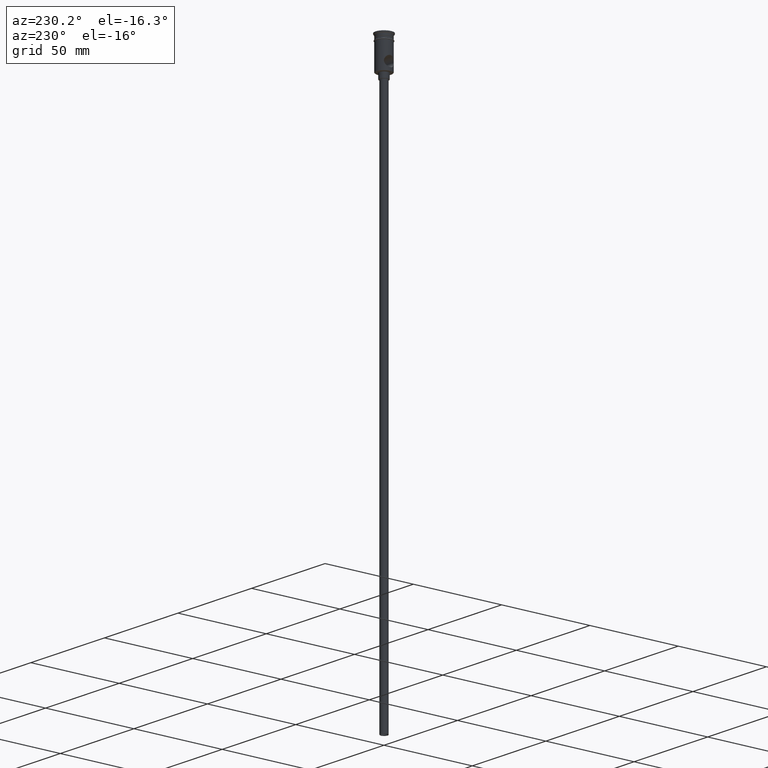
[diagram: clean part render]
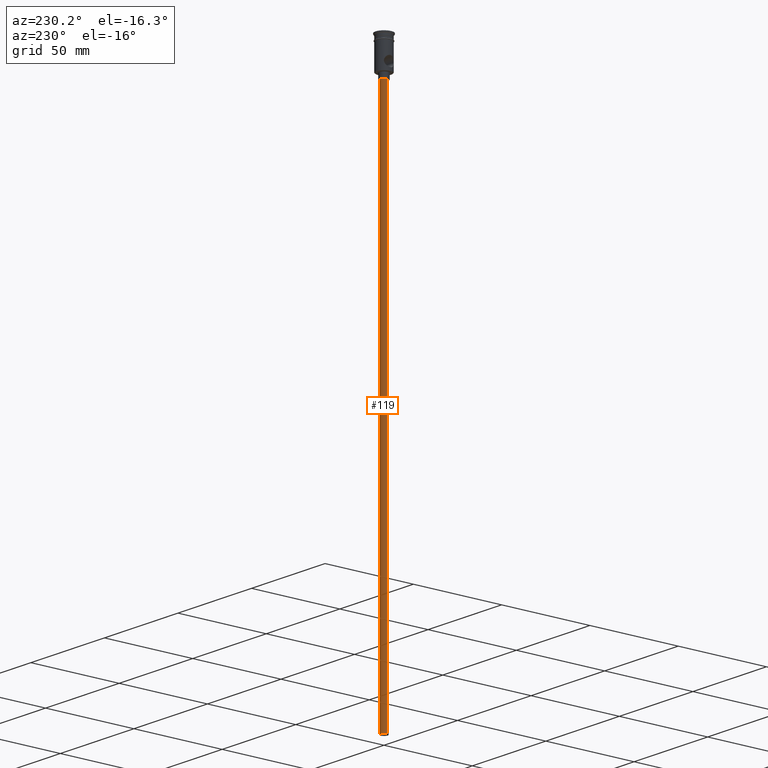
[diagram: same view with one face highlighted and labeled with its STEP entity id]
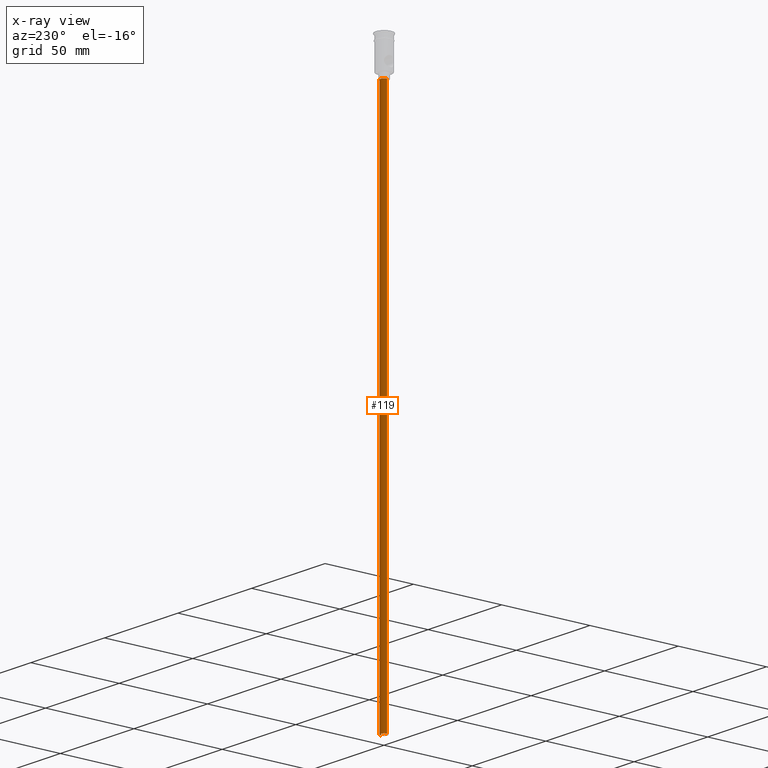
[diagram: x-ray of the same camera — body ghosted, the highlighted face saturated]
A machine part, auxiliary view. The second image highlights one B-rep face of the part: STEP entity #119.
The next image is the same camera in x-ray: the body ghosted, the highlighted face saturated — about 0% of this face is hidden behind the body in this view.
In plain terms, the highlighted cylindrical surface (edge-blend (fillet) strip) has radius 2 mm, axis along (-0, -0, 1).
Its self-contained STEP definition (entity closure, byte-faithful):
#119 = ADVANCED_FACE ( 'NONE', ( #1331 ), #232, .T. ) ;
#171 = CARTESIAN_POINT ( 'NONE',  ( 2.000000000000000000, 0.000000000000000000, -318.0000000000000000 ) ) ;
#216 = LINE ( 'NONE', #527, #463 ) ;
#232 = CYLINDRICAL_SURFACE ( 'NONE', #1192, 2.000000000000000000 ) ;
#234 = EDGE_CURVE ( 'NONE', #431, #1336, #659, .T. ) ;
#388 = DIRECTION ( 'NONE',  ( 0.000000000000000000, 0.000000000000000000, -1.000000000000000000 ) ) ;
#431 = VERTEX_POINT ( 'NONE', #1349 ) ;
#463 = VECTOR ( 'NONE', #544, 1000.000000000000000 ) ;
#509 = VERTEX_POINT ( 'NONE', #171 ) ;
#527 = CARTESIAN_POINT ( 'NONE',  ( -2.000000000000000000, 2.449293598294706414E-16, -318.0000000000000000 ) ) ;
#544 = DIRECTION ( 'NONE',  ( -0.000000000000000000, -0.000000000000000000, 1.000000000000000000 ) ) ;
#550 = DIRECTION ( 'NONE',  ( 1.000000000000000000, 0.000000000000000000, 0.000000000000000000 ) ) ;
#598 = LINE ( 'NONE', #1181, #637 ) ;
#637 = VECTOR ( 'NONE', #1174, 1000.000000000000000 ) ;
#659 = CIRCLE ( 'NONE', #1265, 2.000000000000000000 ) ;
#664 = ORIENTED_EDGE ( 'NONE', *, *, #1242, .F. ) ;
#693 = CARTESIAN_POINT ( 'NONE',  ( 0.000000000000000000, 0.000000000000000000, -318.0000000000000000 ) ) ;
#714 = CARTESIAN_POINT ( 'NONE',  ( -2.000000000000000000, 2.449293598294706414E-16, -318.0000000000000000 ) ) ;
#718 = CARTESIAN_POINT ( 'NONE',  ( 2.000000000000000000, 0.000000000000000000, -20.99999999999999645 ) ) ;
#743 = ORIENTED_EDGE ( 'NONE', *, *, #1069, .T. ) ;
#757 = AXIS2_PLACEMENT_3D ( 'NONE', #693, #388, #821 ) ;
#821 = DIRECTION ( 'NONE',  ( -1.000000000000000000, 0.000000000000000000, 0.000000000000000000 ) ) ;
#906 = ORIENTED_EDGE ( 'NONE', *, *, #234, .T. ) ;
#919 = VERTEX_POINT ( 'NONE', #714 ) ;
#990 = DIRECTION ( 'NONE',  ( -1.000000000000000000, 0.000000000000000000, 0.000000000000000000 ) ) ;
#1040 = CARTESIAN_POINT ( 'NONE',  ( 0.000000000000000000, 0.000000000000000000, -20.99999999999999645 ) ) ;
#1069 = EDGE_CURVE ( 'NONE', #919, #431, #216, .T. ) ;
#1100 = CIRCLE ( 'NONE', #757, 2.000000000000000000 ) ;
#1113 = ORIENTED_EDGE ( 'NONE', *, *, #1302, .F. ) ;
#1127 = DIRECTION ( 'NONE',  ( -0.000000000000000000, -0.000000000000000000, 1.000000000000000000 ) ) ;
#1144 = DIRECTION ( 'NONE',  ( 0.000000000000000000, 0.000000000000000000, -1.000000000000000000 ) ) ;
#1174 = DIRECTION ( 'NONE',  ( -0.000000000000000000, -0.000000000000000000, 1.000000000000000000 ) ) ;
#1181 = CARTESIAN_POINT ( 'NONE',  ( 2.000000000000000000, 0.000000000000000000, -318.0000000000000000 ) ) ;
#1192 = AXIS2_PLACEMENT_3D ( 'NONE', #1439, #1127, #550 ) ;
#1242 = EDGE_CURVE ( 'NONE', #919, #509, #1100, .T. ) ;
#1265 = AXIS2_PLACEMENT_3D ( 'NONE', #1040, #1144, #990 ) ;
#1302 = EDGE_CURVE ( 'NONE', #509, #1336, #598, .T. ) ;
#1331 = FACE_OUTER_BOUND ( 'NONE', #1338, .T. ) ;
#1336 = VERTEX_POINT ( 'NONE', #718 ) ;
#1338 = EDGE_LOOP ( 'NONE', ( #664, #743, #906, #1113 ) ) ;
#1349 = CARTESIAN_POINT ( 'NONE',  ( -2.000000000000000000, 2.449293598294706414E-16, -20.99999999999999645 ) ) ;
#1439 = CARTESIAN_POINT ( 'NONE',  ( 0.000000000000000000, 0.000000000000000000, -318.0000000000000000 ) ) ;